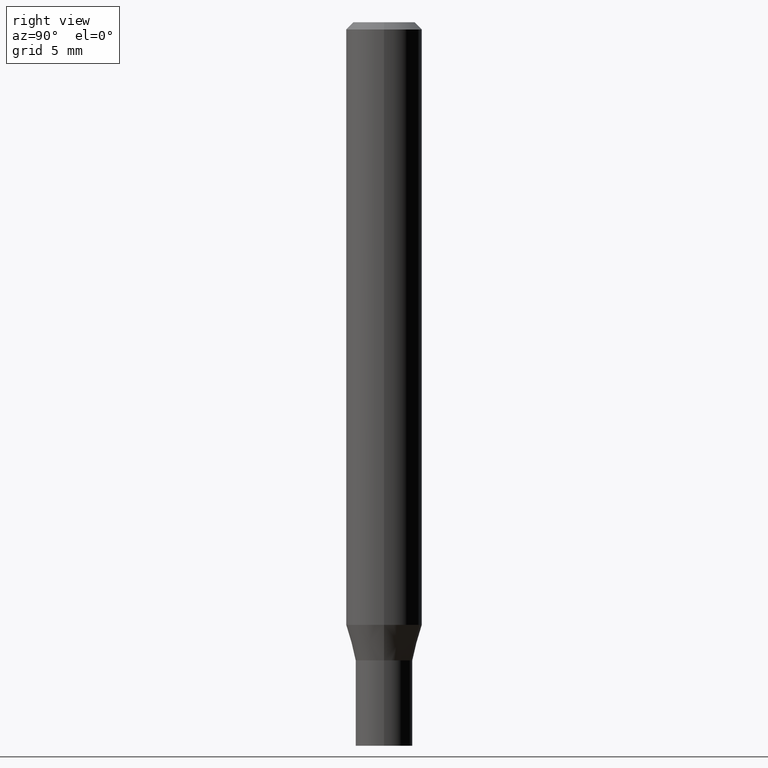
[diagram: clean part render]
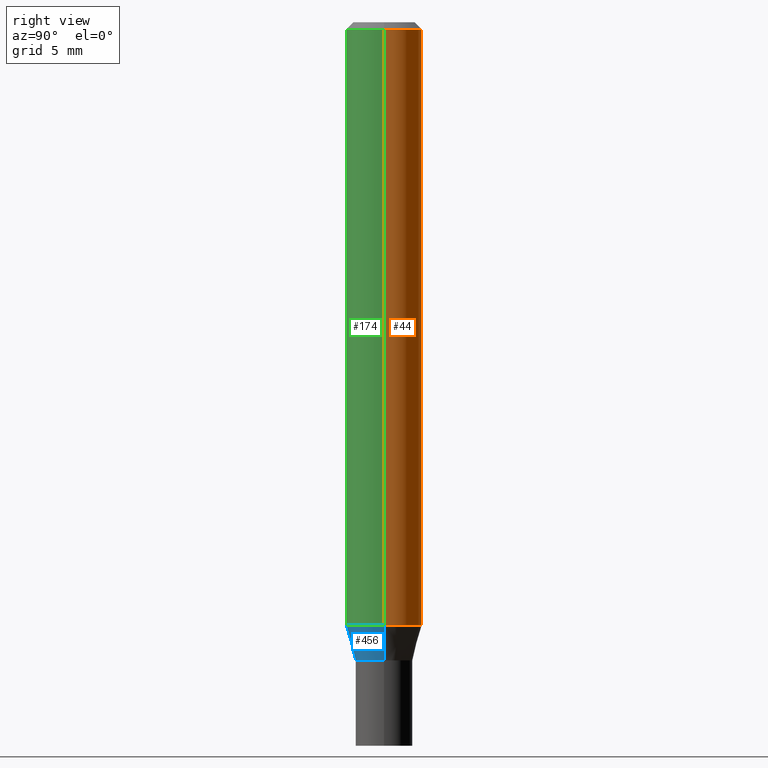
[diagram: same view with three faces highlighted in distinct colors, each labeled with its STEP entity id]
A machine part, right view with three faces highlighted in distinct colors.
Their STEP definitions:

[orange] entity #44 — the highlighted cylindrical surface (partial cylindrical patch) has radius 2.0002 mm, axis along (-0, 0, 1).
#19 = DIRECTION ( 'NONE',  ( -2.445468806185136877E-29, 3.491481338843145188E-15, 1.000000000000000000 ) ) ;
#24 = LINE ( 'NONE', #409, #177 ) ;
#29 = CARTESIAN_POINT ( 'NONE',  ( 0.07875000000000000056, -5.499083108677934443E-16, 3.839989210939299016E-30 ) ) ;
#44 = ADVANCED_FACE ( 'NONE', ( #229 ), #56, .T. ) ;
#51 = CIRCLE ( 'NONE', #305, 0.07875000000000000056 ) ;
#56 = CYLINDRICAL_SURFACE ( 'NONE', #421, 0.07875000000000000056 ) ;
#68 = CIRCLE ( 'NONE', #75, 0.07875000000000000056 ) ;
#69 = VERTEX_POINT ( 'NONE', #219 ) ;
#75 = AXIS2_PLACEMENT_3D ( 'NONE', #158, #236, #344 ) ;
#92 = DIRECTION ( 'NONE',  ( -2.445468806185136597E-29, 3.491481338843145583E-15, 1.000000000000000000 ) ) ;
#107 = ORIENTED_EDGE ( 'NONE', *, *, #412, .F. ) ;
#114 = CARTESIAN_POINT ( 'NONE',  ( 0.000000000000000000, 0.000000000000000000, 0.000000000000000000 ) ) ;
#142 = VERTEX_POINT ( 'NONE', #242 ) ;
#158 = CARTESIAN_POINT ( 'NONE',  ( 3.055560938072683577E-29, -4.362531212009729741E-15, -1.249478599090893205 ) ) ;
#160 = DIRECTION ( 'NONE',  ( 1.000000000000000000, -6.982962677686265922E-15, 4.876176775795935232E-29 ) ) ;
#177 = VECTOR ( 'NONE', #419, 39.37007874015748143 ) ;
#219 = CARTESIAN_POINT ( 'NONE',  ( 0.07875000000000000056, -4.912439522877523087E-15, -1.249478599090893205 ) ) ;
#229 = FACE_OUTER_BOUND ( 'NONE', #331, .T. ) ;
#236 = DIRECTION ( 'NONE',  ( -2.445468806185136597E-29, 3.491481338843145583E-15, 1.000000000000000000 ) ) ;
#238 = CARTESIAN_POINT ( 'NONE',  ( 0.07875000000000000056, -6.022805309504406221E-16, -0.01499999999999999944 ) ) ;
#242 = CARTESIAN_POINT ( 'NONE',  ( -0.07875000000000000056, -1.647899311635109609E-15, -0.01499999999999999944 ) ) ;
#269 = CARTESIAN_POINT ( 'NONE',  ( -0.07875000000000000056, -3.802978807598650940E-15, -1.249478599090893205 ) ) ;
#275 = CARTESIAN_POINT ( 'NONE',  ( 3.668203209277705088E-31, -5.237222008264718399E-17, -0.01499999999999999944 ) ) ;
#286 = EDGE_CURVE ( 'NONE', #324, #142, #24, .T. ) ;
#297 = ORIENTED_EDGE ( 'NONE', *, *, #316, .F. ) ;
#305 = AXIS2_PLACEMENT_3D ( 'NONE', #275, #92, #375 ) ;
#316 = EDGE_CURVE ( 'NONE', #451, #142, #51, .T. ) ;
#324 = VERTEX_POINT ( 'NONE', #269 ) ;
#331 = EDGE_LOOP ( 'NONE', ( #356, #463, #297, #107 ) ) ;
#344 = DIRECTION ( 'NONE',  ( 1.000000000000000000, -6.982962677686261977E-15, 0.000000000000000000 ) ) ;
#356 = ORIENTED_EDGE ( 'NONE', *, *, #458, .T. ) ;
#375 = DIRECTION ( 'NONE',  ( 1.000000000000000000, -6.982962677686265922E-15, 0.000000000000000000 ) ) ;
#389 = VECTOR ( 'NONE', #19, 39.37007874015748143 ) ;
#400 = DIRECTION ( 'NONE',  ( -2.445468806185136597E-29, 3.491481338843145583E-15, 1.000000000000000000 ) ) ;
#409 = CARTESIAN_POINT ( 'NONE',  ( -0.07875000000000000056, 5.595524044110789003E-16, -3.873661383575737792E-30 ) ) ;
#412 = EDGE_CURVE ( 'NONE', #69, #451, #416, .T. ) ;
#416 = LINE ( 'NONE', #29, #389 ) ;
#419 = DIRECTION ( 'NONE',  ( -2.445468806185136877E-29, 3.491481338843145188E-15, 1.000000000000000000 ) ) ;
#421 = AXIS2_PLACEMENT_3D ( 'NONE', #114, #400, #160 ) ;
#451 = VERTEX_POINT ( 'NONE', #238 ) ;
#458 = EDGE_CURVE ( 'NONE', #69, #324, #68, .T. ) ;
#463 = ORIENTED_EDGE ( 'NONE', *, *, #286, .T. ) ;

[blue] entity #456 — the highlighted conical surface has half-angle 15 deg.
#18 = VERTEX_POINT ( 'NONE', #406 ) ;
#25 = DIRECTION ( 'NONE',  ( -0.2588190451025217942, 5.211531920934552619E-15, 0.9659258262890679791 ) ) ;
#26 = CARTESIAN_POINT ( 'NONE',  ( 3.235355230582935570E-29, -4.619229811289481459E-15, -1.323000000000000176 ) ) ;
#35 = CONICAL_SURFACE ( 'NONE', #42, 0.05904999999999991506, 0.2617993877991505181 ) ;
#42 = AXIS2_PLACEMENT_3D ( 'NONE', #26, #127, #272 ) ;
#48 = EDGE_LOOP ( 'NONE', ( #365, #247, #70, #175 ) ) ;
#55 = CARTESIAN_POINT ( 'NONE',  ( 0.05904999999999991506, -5.031573757406854801E-15, -1.323000000000000176 ) ) ;
#61 = CARTESIAN_POINT ( 'NONE',  ( 3.055560938072683577E-29, -4.362531212009729741E-15, -1.249478599090893205 ) ) ;
#69 = VERTEX_POINT ( 'NONE', #219 ) ;
#70 = ORIENTED_EDGE ( 'NONE', *, *, #302, .T. ) ;
#110 = VECTOR ( 'NONE', #413, 39.37007874015748143 ) ;
#111 = DIRECTION ( 'NONE',  ( -2.445468806185136597E-29, 3.491481338843145583E-15, 1.000000000000000000 ) ) ;
#127 = DIRECTION ( 'NONE',  ( -2.445468806185136597E-29, 3.491481338843145583E-15, 1.000000000000000000 ) ) ;
#149 = CIRCLE ( 'NONE', #376, 0.07875000000000000056 ) ;
#175 = ORIENTED_EDGE ( 'NONE', *, *, #348, .F. ) ;
#192 = CARTESIAN_POINT ( 'NONE',  ( -0.05904999999999991506, -4.199654325823143543E-15, -1.323000000000000176 ) ) ;
#219 = CARTESIAN_POINT ( 'NONE',  ( 0.07875000000000000056, -4.912439522877523087E-15, -1.249478599090893205 ) ) ;
#231 = LINE ( 'NONE', #192, #354 ) ;
#237 = DIRECTION ( 'NONE',  ( 1.000000000000000000, -6.982962677686261977E-15, 0.000000000000000000 ) ) ;
#247 = ORIENTED_EDGE ( 'NONE', *, *, #278, .T. ) ;
#269 = CARTESIAN_POINT ( 'NONE',  ( -0.07875000000000000056, -3.802978807598650940E-15, -1.249478599090893205 ) ) ;
#272 = DIRECTION ( 'NONE',  ( 1.000000000000000000, -6.982962677686266711E-15, 0.000000000000000000 ) ) ;
#273 = AXIS2_PLACEMENT_3D ( 'NONE', #295, #111, #440 ) ;
#278 = EDGE_CURVE ( 'NONE', #395, #18, #414, .T. ) ;
#295 = CARTESIAN_POINT ( 'NONE',  ( 3.235355230582935570E-29, -4.619229811289481459E-15, -1.323000000000000176 ) ) ;
#302 = EDGE_CURVE ( 'NONE', #18, #69, #453, .T. ) ;
#324 = VERTEX_POINT ( 'NONE', #269 ) ;
#341 = EDGE_CURVE ( 'NONE', #395, #324, #231, .T. ) ;
#346 = FACE_OUTER_BOUND ( 'NONE', #48, .T. ) ;
#348 = EDGE_CURVE ( 'NONE', #324, #69, #149, .T. ) ;
#354 = VECTOR ( 'NONE', #25, 39.37007874015748143 ) ;
#365 = ORIENTED_EDGE ( 'NONE', *, *, #341, .F. ) ;
#376 = AXIS2_PLACEMENT_3D ( 'NONE', #61, #383, #237 ) ;
#383 = DIRECTION ( 'NONE',  ( -2.445468806185136597E-29, 3.491481338843145583E-15, 1.000000000000000000 ) ) ;
#395 = VERTEX_POINT ( 'NONE', #457 ) ;
#406 = CARTESIAN_POINT ( 'NONE',  ( 0.05904999999999991506, -5.031573757406854801E-15, -1.323000000000000176 ) ) ;
#413 = DIRECTION ( 'NONE',  ( 0.2588190451025217942, 1.565188264969618812E-15, 0.9659258262890679791 ) ) ;
#414 = CIRCLE ( 'NONE', #273, 0.05904999999999991506 ) ;
#440 = DIRECTION ( 'NONE',  ( 1.000000000000000000, -6.982962677686266711E-15, 0.000000000000000000 ) ) ;
#453 = LINE ( 'NONE', #55, #110 ) ;
#456 = ADVANCED_FACE ( 'NONE', ( #346 ), #35, .T. ) ;
#457 = CARTESIAN_POINT ( 'NONE',  ( -0.05904999999999991506, -4.001316566710896453E-15, -1.323000000000000176 ) ) ;

[green] entity #174 — the highlighted cylindrical surface (partial cylindrical patch) has radius 2.0002 mm, axis along (-0, 0, 1).
#13 = CARTESIAN_POINT ( 'NONE',  ( 0.000000000000000000, 0.000000000000000000, 0.000000000000000000 ) ) ;
#19 = DIRECTION ( 'NONE',  ( -2.445468806185136877E-29, 3.491481338843145188E-15, 1.000000000000000000 ) ) ;
#24 = LINE ( 'NONE', #409, #177 ) ;
#29 = CARTESIAN_POINT ( 'NONE',  ( 0.07875000000000000056, -5.499083108677934443E-16, 3.839989210939299016E-30 ) ) ;
#61 = CARTESIAN_POINT ( 'NONE',  ( 3.055560938072683577E-29, -4.362531212009729741E-15, -1.249478599090893205 ) ) ;
#69 = VERTEX_POINT ( 'NONE', #219 ) ;
#122 = ORIENTED_EDGE ( 'NONE', *, *, #286, .F. ) ;
#139 = AXIS2_PLACEMENT_3D ( 'NONE', #13, #189, #152 ) ;
#142 = VERTEX_POINT ( 'NONE', #242 ) ;
#143 = CARTESIAN_POINT ( 'NONE',  ( 3.668203209277705088E-31, -5.237222008264718399E-17, -0.01499999999999999944 ) ) ;
#149 = CIRCLE ( 'NONE', #376, 0.07875000000000000056 ) ;
#152 = DIRECTION ( 'NONE',  ( 1.000000000000000000, -6.982962677686265922E-15, 4.876176775795935232E-29 ) ) ;
#174 = ADVANCED_FACE ( 'NONE', ( #255 ), #371, .T. ) ;
#177 = VECTOR ( 'NONE', #419, 39.37007874015748143 ) ;
#189 = DIRECTION ( 'NONE',  ( -2.445468806185136597E-29, 3.491481338843145583E-15, 1.000000000000000000 ) ) ;
#219 = CARTESIAN_POINT ( 'NONE',  ( 0.07875000000000000056, -4.912439522877523087E-15, -1.249478599090893205 ) ) ;
#232 = EDGE_CURVE ( 'NONE', #142, #451, #460, .T. ) ;
#237 = DIRECTION ( 'NONE',  ( 1.000000000000000000, -6.982962677686261977E-15, 0.000000000000000000 ) ) ;
#238 = CARTESIAN_POINT ( 'NONE',  ( 0.07875000000000000056, -6.022805309504406221E-16, -0.01499999999999999944 ) ) ;
#242 = CARTESIAN_POINT ( 'NONE',  ( -0.07875000000000000056, -1.647899311635109609E-15, -0.01499999999999999944 ) ) ;
#255 = FACE_OUTER_BOUND ( 'NONE', #289, .T. ) ;
#263 = AXIS2_PLACEMENT_3D ( 'NONE', #143, #291, #431 ) ;
#269 = CARTESIAN_POINT ( 'NONE',  ( -0.07875000000000000056, -3.802978807598650940E-15, -1.249478599090893205 ) ) ;
#286 = EDGE_CURVE ( 'NONE', #324, #142, #24, .T. ) ;
#289 = EDGE_LOOP ( 'NONE', ( #122, #398, #388, #293 ) ) ;
#291 = DIRECTION ( 'NONE',  ( -2.445468806185136597E-29, 3.491481338843145583E-15, 1.000000000000000000 ) ) ;
#293 = ORIENTED_EDGE ( 'NONE', *, *, #232, .F. ) ;
#324 = VERTEX_POINT ( 'NONE', #269 ) ;
#348 = EDGE_CURVE ( 'NONE', #324, #69, #149, .T. ) ;
#371 = CYLINDRICAL_SURFACE ( 'NONE', #139, 0.07875000000000000056 ) ;
#376 = AXIS2_PLACEMENT_3D ( 'NONE', #61, #383, #237 ) ;
#383 = DIRECTION ( 'NONE',  ( -2.445468806185136597E-29, 3.491481338843145583E-15, 1.000000000000000000 ) ) ;
#388 = ORIENTED_EDGE ( 'NONE', *, *, #412, .T. ) ;
#389 = VECTOR ( 'NONE', #19, 39.37007874015748143 ) ;
#398 = ORIENTED_EDGE ( 'NONE', *, *, #348, .T. ) ;
#409 = CARTESIAN_POINT ( 'NONE',  ( -0.07875000000000000056, 5.595524044110789003E-16, -3.873661383575737792E-30 ) ) ;
#412 = EDGE_CURVE ( 'NONE', #69, #451, #416, .T. ) ;
#416 = LINE ( 'NONE', #29, #389 ) ;
#419 = DIRECTION ( 'NONE',  ( -2.445468806185136877E-29, 3.491481338843145188E-15, 1.000000000000000000 ) ) ;
#431 = DIRECTION ( 'NONE',  ( 1.000000000000000000, -6.982962677686265922E-15, 0.000000000000000000 ) ) ;
#451 = VERTEX_POINT ( 'NONE', #238 ) ;
#460 = CIRCLE ( 'NONE', #263, 0.07875000000000000056 ) ;